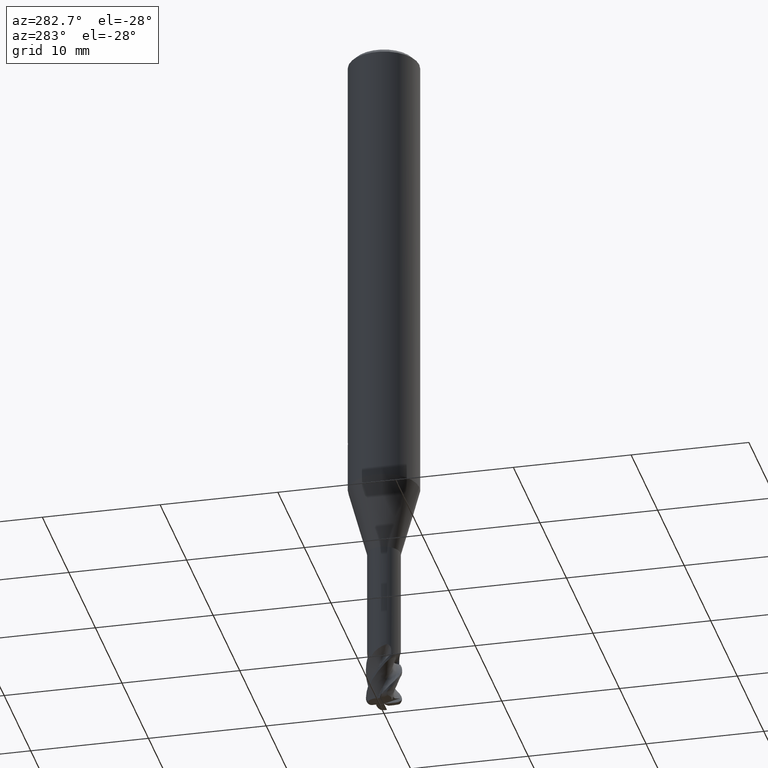
[diagram: clean part render]
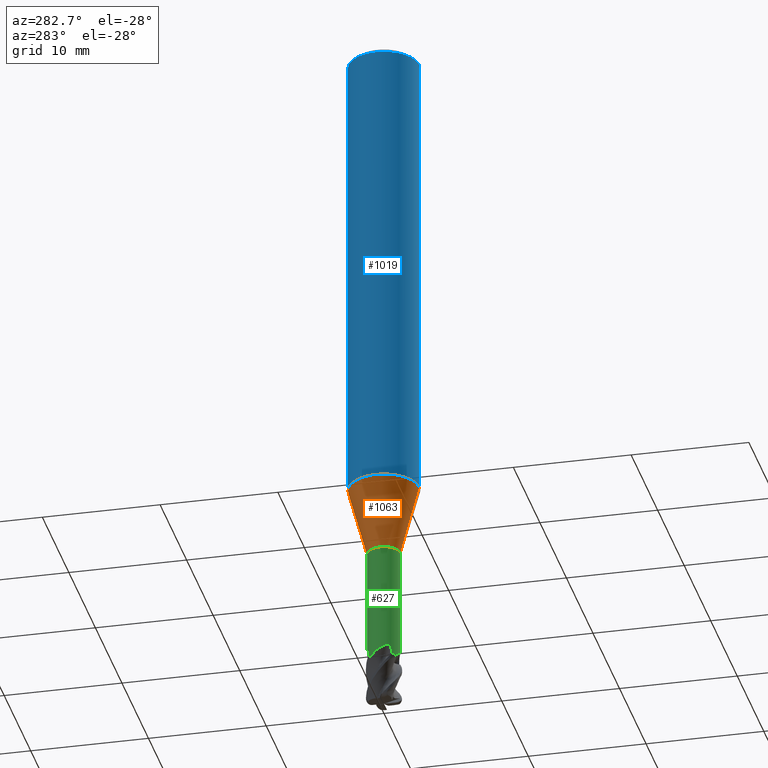
[diagram: same view with three faces highlighted in distinct colors, each labeled with its STEP entity id]
A machine part, auxiliary view with three faces highlighted in distinct colors.
Their STEP definitions:

[orange] entity #1063 — the highlighted conical surface has half-angle 15.001 deg.
#695=EDGE_CURVE('',#941,#707,#1690,.T.);
#707=VERTEX_POINT('',#1702);
#773=EDGE_CURVE('',#949,#1305,#1770,.T.);
#941=VERTEX_POINT('',#1951);
#949=VERTEX_POINT('',#1959);
#1063=ADVANCED_FACE('',(#2088),#2089,.T.);
#1263=EDGE_CURVE('',#1305,#707,#2311,.T.);
#1305=VERTEX_POINT('',#2355);
#1339=EDGE_CURVE('',#941,#949,#2394,.T.);
#1690=CIRCLE('',#3250,1.39995);
#1702=CARTESIAN_POINT('',(0.0,1.39995,-46.0));
#1770=CIRCLE('',#3572,2.99995);
#1951=CARTESIAN_POINT('',(1.71438766503364E-016,-1.39995,-46.0));
#1959=CARTESIAN_POINT('',(3.67375783114944E-016,-2.99995,-40.029));
#2088=FACE_OUTER_BOUND('',#5135,.T.);
#2089=CONICAL_SURFACE('',#5136,2.19995,0.261811165190814);
#2311=LINE('',#6642,#6643);
#2355=CARTESIAN_POINT('',(0.0,2.99995,-40.029));
#2394=LINE('',#6925,#6926);
#3250=AXIS2_PLACEMENT_3D('',#7999,#8000,#8001);
#3572=AXIS2_PLACEMENT_3D('',#8029,#8030,#8031);
#5135=EDGE_LOOP('',(#8375,#8376,#8377,#8378));
#5136=AXIS2_PLACEMENT_3D('',#8379,#8380,#8381);
#6642=CARTESIAN_POINT('',(-2.69407274809154E-016,2.19995,-43.0145));
#6643=VECTOR('',#8642,1.0);
#6925=CARTESIAN_POINT('',(2.69407274809154E-016,-2.19995,-43.0145));
#6926=VECTOR('',#8723,1.0);
#7999=CARTESIAN_POINT('',(0.0,0.0,-46.0));
#8000=DIRECTION('',(0.0,0.0,-1.0));
#8001=DIRECTION('',(0.0,1.0,0.0));
#8029=CARTESIAN_POINT('',(0.0,0.0,-40.029));
#8030=DIRECTION('',(0.0,0.0,-1.0));
#8031=DIRECTION('',(0.0,1.0,0.0));
#8375=ORIENTED_EDGE('',*,*,#1263,.T.);
#8376=ORIENTED_EDGE('',*,*,#695,.F.);
#8377=ORIENTED_EDGE('',*,*,#1339,.T.);
#8378=ORIENTED_EDGE('',*,*,#773,.T.);
#8379=CARTESIAN_POINT('',(0.0,0.0,-43.0145));
#8380=DIRECTION('',(-0.0,-0.0,1.0));
#8381=DIRECTION('',(0.0,1.0,0.0));
#8642=DIRECTION('',(3.16965378328951E-017,-0.258830421171345,-0.965922778008814));
#8723=DIRECTION('',(3.16965378328951E-017,-0.258830421171345,0.965922778008814));

[blue] entity #1019 — the highlighted cylindrical surface (edge-blend (fillet) strip) has radius 3 mm, axis along (-0, -0, 1).
#557=EDGE_CURVE('',#1205,#1451,#1544,.T.);
#643=EDGE_CURVE('',#1177,#1439,#1634,.T.);
#681=EDGE_CURVE('',#1439,#807,#1675,.T.);
#701=VERTEX_POINT('',#1696);
#723=VERTEX_POINT('',#1720);
#737=EDGE_CURVE('',#1413,#701,#1734,.T.);
#739=VERTEX_POINT('',#1736);
#807=VERTEX_POINT('',#1808);
#821=EDGE_CURVE('',#919,#723,#1822,.T.);
#919=VERTEX_POINT('',#1928);
#923=EDGE_CURVE('',#739,#701,#1932,.T.);
#963=EDGE_CURVE('',#969,#1205,#1973,.T.);
#969=VERTEX_POINT('',#1979);
#1019=ADVANCED_FACE('',(#2034,#2035,#2036),#2037,.T.);
#1051=EDGE_CURVE('',#807,#919,#2075,.T.);
#1097=EDGE_CURVE('',#723,#1177,#2125,.T.);
#1131=EDGE_CURVE('',#1269,#1413,#2163,.T.);
#1141=EDGE_CURVE('',#739,#1269,#2174,.T.);
#1177=VERTEX_POINT('',#2216);
#1205=VERTEX_POINT('',#2247);
#1261=EDGE_CURVE('',#1451,#969,#2309,.T.);
#1269=VERTEX_POINT('',#2317);
#1413=VERTEX_POINT('',#2478);
#1439=VERTEX_POINT('',#2505);
#1451=VERTEX_POINT('',#2519);
#1544=LINE('',#2639,#2640);
#1634=CIRCLE('',#2938,3.0);
#1675=B_SPLINE_CURVE_WITH_KNOTS('',3,(#3178,#3179,#3180,#3181,#3182,#3183,#3184,#3185,#3186,#3187,#3188,#3189,#3190,#3191),.UNSPECIFIED.,.F.,.F.,(4,2,2,2,2,2,4),(2.091097645352,2.38959558480883,2.68809352426566,2.9865914637225,3.28432857408576,3.58206568444903,3.88185771191667),.UNSPECIFIED.);
#1696=CARTESIAN_POINT('',(-3.67381906146713E-016,3.0,-40.029));
#1720=CARTESIAN_POINT('',(-0.324247225918625,2.98242581407888,-34.457948685318));
#1734=LINE('',#3491,#3492);
#1736=CARTESIAN_POINT('',(0.0,-3.0,-40.029));
#1808=CARTESIAN_POINT('',(-0.0173204359069893,2.99995,-35.0267581803455));
#1822=B_SPLINE_CURVE_WITH_KNOTS('',3,(#3710,#3711,#3712,#3713,#3714,#3715,#3716,#3717,#3718,#3719,#3720,#3721,#3722,#3723,#3724,#3725,#3726,#3727,#3728,#3729,#3730,#3731,#3732,#3733,#3734,#3735,#3736),.UNSPECIFIED.,.F.,.F.,(4,2,3,2,2,2,2,2,2,2,2,2,4),(-0.361797878080097,-0.180898939040048,0.0,0.180898939040045,0.36179787808009,0.54316499674529,0.724532115410489,0.905110773244761,1.08568943107903,1.26650066090355,1.44731189072806,1.62812312055258,1.80893435037709),.UNSPECIFIED.);
#1928=CARTESIAN_POINT('',(-0.017320435906965,2.99995,-34.707064236895));
#1932=CIRCLE('',#4082,3.0);
#1973=B_SPLINE_CURVE_WITH_KNOTS('',3,(#4218,#4219,#4220,#4221,#4222,#4223,#4224,#4225,#4226,#4227),.UNSPECIFIED.,.F.,.F.,(4,2,2,2,4),(3.71798730591323,4.13127027719931,4.54460961578536,4.9579489543714,5.37052319276389),.UNSPECIFIED.);
#1979=CARTESIAN_POINT('',(-0.891353646972585,2.86452241674396,-35.6104605734398));
#2034=FACE_OUTER_BOUND('',#4565,.T.);
#2035=FACE_BOUND('',#4566,.T.);
#2036=FACE_BOUND('',#4567,.T.);
#2037=CYLINDRICAL_SURFACE('',#4568,3.0);
#2075=LINE('',#5084,#5085);
#2125=B_SPLINE_CURVE_WITH_KNOTS('',3,(#5275,#5276,#5277,#5278,#5279,#5280,#5281,#5282,#5283,#5284,#5285,#5286,#5287,#5288,#5289,#5290,#5291,#5292,#5293,#5294,#5295,#5296,#5297,#5298,#5299,#5300,#5301),.UNSPECIFIED.,.F.,.F.,(4,2,3,2,2,2,2,2,2,2,2,2,4),(-0.361797878080097,-0.180898939040048,0.0,0.180898939040045,0.36179787808009,0.54316499674529,0.724532115410489,0.905110773244761,1.08568943107903,1.26650066090355,1.44731189072806,1.62812312055258,1.80893435037709),.UNSPECIFIED.);
#2163=CIRCLE('',#5562,3.0);
#2174=LINE('',#5688,#5689);
#2216=CARTESIAN_POINT('',(-0.374883079288044,2.9764849532399,-34.2405112759037));
#2247=CARTESIAN_POINT('',(-0.0173204359069978,2.99995,-36.0499133845535));
#2309=ELLIPSE('',#6639,3.34478529612858,3.0);
#2317=CARTESIAN_POINT('',(3.67381906146713E-016,-3.0,-0.399999999999999));
#2478=CARTESIAN_POINT('',(0.0,3.0,-0.399999999999999));
#2505=CARTESIAN_POINT('',(-0.690037436273679,2.9195630386311,-34.2405112759037));
#2519=CARTESIAN_POINT('',(-0.017320435906985,2.99995,-35.1795476553544));
#2639=CARTESIAN_POINT('',(-0.017320435906985,2.99995,-35.0395073647412));
#2640=VECTOR('',#7884,1.0);
#2938=AXIS2_PLACEMENT_3D('',#7951,#7952,#7953);
#3178=CARTESIAN_POINT('',(-0.629727328037683,2.93316271153213,-33.9440913557644));
#3179=CARTESIAN_POINT('',(-0.670089755997728,2.92449721450026,-34.0412639601135));
#3180=CARTESIAN_POINT('',(-0.690061178540054,2.91955742705498,-34.1471316354559));
#3181=CARTESIAN_POINT('',(-0.690061178540054,2.91955742705498,-34.3461302617605));
#3182=CARTESIAN_POINT('',(-0.670089755997728,2.92449721450026,-34.4519979371029));
#3183=CARTESIAN_POINT('',(-0.589364900077664,2.94182820856402,-34.6463431458012));
#3184=CARTESIAN_POINT('',(-0.528629969212499,2.95390696563364,-34.7348560999866));
#3185=CARTESIAN_POINT('',(-0.388825924618277,2.97553438372319,-34.8744507471901));
#3186=CARTESIAN_POINT('',(-0.300374998568301,2.98650953771095,-34.9350152917628));
#3187=CARTESIAN_POINT('',(-0.106252469502454,2.99969577970094,-35.0154637231012));
#3188=CARTESIAN_POINT('',(-0.000555188223129111,3.0016411180253,-35.0353289843056));
#3189=CARTESIAN_POINT('',(0.198513504569518,2.99509240733468,-35.0353289843056));
#3190=CARTESIAN_POINT('',(0.304528894401634,2.98611319488251,-35.015217470731));
#3191=CARTESIAN_POINT('',(0.401676121348868,2.97298777218106,-34.9747873850085));
#3491=CARTESIAN_POINT('',(-3.67381906146713E-016,3.0,-18.2));
#3492=VECTOR('',#8023,1.0);
#3710=CARTESIAN_POINT('',(0.443451175650265,2.96704416125113,-33.9048764058061));
#3711=CARTESIAN_POINT('',(0.485825230520439,2.96071098134951,-33.9473072631593));
#3712=CARTESIAN_POINT('',(0.522628634598443,2.95423041401875,-34.0010565977036));
#3713=CARTESIAN_POINT('',(0.57151547907337,2.94516350896329,-34.1190093998545));
#3714=CARTESIAN_POINT('',(0.58359092842081,2.94268952291351,-34.1832247886017));
#3715=CARTESIAN_POINT('',(0.58359092842081,2.94268952291351,-34.2435244349484));
#3716=CARTESIAN_POINT('',(0.58359092842081,2.94268952291351,-34.3038240812951));
#3717=CARTESIAN_POINT('',(0.571515479073374,2.94516350896329,-34.3680394700423));
#3718=CARTESIAN_POINT('',(0.522628634598449,2.95423041401874,-34.4859922721932));
#3719=CARTESIAN_POINT('',(0.485825230520438,2.96071098134951,-34.5397416067375));
#3720=CARTESIAN_POINT('',(0.400967453640912,2.97339373188344,-34.6247131355921));
#3721=CARTESIAN_POINT('',(0.347160591378603,2.98043595390805,-34.6616186343397));
#3722=CARTESIAN_POINT('',(0.229067490754345,2.99183004798448,-34.7106491335629));
#3723=CARTESIAN_POINT('',(0.164768311964613,2.99608182394725,-34.7227661750437));
#3724=CARTESIAN_POINT('',(0.0441927259273236,3.00027835150232,-34.7227661750437));
#3725=CARTESIAN_POINT('',(-0.019984914707439,3.00051422459916,-34.7107432311485));
#3726=CARTESIAN_POINT('',(-0.138011899975601,2.99740516520178,-34.6618705536194));
#3727=CARTESIAN_POINT('',(-0.191865153226538,2.99416206152009,-34.6250238345305));
#3728=CARTESIAN_POINT('',(-0.276951356845972,2.9874941541864,-34.5400104084073));
#3729=CARTESIAN_POINT('',(-0.31385751762486,2.98363884435361,-34.4861404765947));
#3730=CARTESIAN_POINT('',(-0.362829872721118,2.97808021777493,-34.36803592618));
#3731=CARTESIAN_POINT('',(-0.374892551769671,2.97648376018208,-34.3037948448899));
#3732=CARTESIAN_POINT('',(-0.374892551769671,2.97648376018208,-34.1832540250069));
#3733=CARTESIAN_POINT('',(-0.362829872721118,2.97808021777493,-34.1190129437168));
#3734=CARTESIAN_POINT('',(-0.31385751762486,2.98363884435361,-34.0009083933022));
#3735=CARTESIAN_POINT('',(-0.276951356845972,2.9874941541864,-33.9470384614896));
#3736=CARTESIAN_POINT('',(-0.234380876478644,2.99083025341478,-33.9045043932883));
#4082=AXIS2_PLACEMENT_3D('',#8186,#8187,#8188);
#4218=CARTESIAN_POINT('',(-1.02131077257619,2.8208020678204,-35.3813603909889));
#4219=CARTESIAN_POINT('',(-0.965748326062893,2.84091920915678,-35.5148586563829));
#4220=CARTESIAN_POINT('',(-0.882474008253194,2.86898278727422,-35.6360393018291));
#4221=CARTESIAN_POINT('',(-0.691181971660376,2.92097462682348,-35.8274209134462));
#4222=CARTESIAN_POINT('',(-0.569939118101215,2.94845792845378,-35.9108242986056));
#4223=CARTESIAN_POINT('',(-0.302738780934602,2.98773894197887,-36.0221051738375));
#4224=CARTESIAN_POINT('',(-0.156684840798735,2.99907204453492,-36.0499145449035));
#4225=CARTESIAN_POINT('',(0.118614216879022,3.00080717863586,-36.0499145449035));
#4226=CARTESIAN_POINT('',(0.264548965222023,2.99134988491468,-36.0221974310104));
#4227=CARTESIAN_POINT('',(0.398117192990064,2.97346644518577,-35.9666337934181));
#4565=EDGE_LOOP('',(#8292,#8293,#8294,#8295));
#4566=EDGE_LOOP('',(#8296,#8297,#8298));
#4567=EDGE_LOOP('',(#8299,#8300,#8301,#8302,#8303));
#4568=AXIS2_PLACEMENT_3D('',#8304,#8305,#8306);
#5084=CARTESIAN_POINT('',(-0.017320435906985,2.99995,-35.0395073647412));
#5085=VECTOR('',#8363,1.0);
#5275=CARTESIAN_POINT('',(0.443451175650265,2.96704416125113,-33.9048764058061));
#5276=CARTESIAN_POINT('',(0.485825230520439,2.96071098134951,-33.9473072631593));
#5277=CARTESIAN_POINT('',(0.522628634598443,2.95423041401875,-34.0010565977036));
#5278=CARTESIAN_POINT('',(0.57151547907337,2.94516350896329,-34.1190093998545));
#5279=CARTESIAN_POINT('',(0.58359092842081,2.94268952291351,-34.1832247886017));
#5280=CARTESIAN_POINT('',(0.58359092842081,2.94268952291351,-34.2435244349484));
#5281=CARTESIAN_POINT('',(0.58359092842081,2.94268952291351,-34.3038240812951));
#5282=CARTESIAN_POINT('',(0.571515479073374,2.94516350896329,-34.3680394700423));
#5283=CARTESIAN_POINT('',(0.522628634598449,2.95423041401874,-34.4859922721932));
#5284=CARTESIAN_POINT('',(0.485825230520438,2.96071098134951,-34.5397416067375));
#5285=CARTESIAN_POINT('',(0.400967453640912,2.97339373188344,-34.6247131355921));
#5286=CARTESIAN_POINT('',(0.347160591378603,2.98043595390805,-34.6616186343397));
#5287=CARTESIAN_POINT('',(0.229067490754345,2.99183004798448,-34.7106491335629));
#5288=CARTESIAN_POINT('',(0.164768311964613,2.99608182394725,-34.7227661750437));
#5289=CARTESIAN_POINT('',(0.0441927259273236,3.00027835150232,-34.7227661750437));
#5290=CARTESIAN_POINT('',(-0.019984914707439,3.00051422459916,-34.7107432311485));
#5291=CARTESIAN_POINT('',(-0.138011899975601,2.99740516520178,-34.6618705536194));
#5292=CARTESIAN_POINT('',(-0.191865153226538,2.99416206152009,-34.6250238345305));
#5293=CARTESIAN_POINT('',(-0.276951356845972,2.9874941541864,-34.5400104084073));
#5294=CARTESIAN_POINT('',(-0.31385751762486,2.98363884435361,-34.4861404765947));
#5295=CARTESIAN_POINT('',(-0.362829872721118,2.97808021777493,-34.36803592618));
#5296=CARTESIAN_POINT('',(-0.374892551769671,2.97648376018208,-34.3037948448899));
#5297=CARTESIAN_POINT('',(-0.374892551769671,2.97648376018208,-34.1832540250069));
#5298=CARTESIAN_POINT('',(-0.362829872721118,2.97808021777493,-34.1190129437168));
#5299=CARTESIAN_POINT('',(-0.31385751762486,2.98363884435361,-34.0009083933022));
#5300=CARTESIAN_POINT('',(-0.276951356845972,2.9874941541864,-33.9470384614896));
#5301=CARTESIAN_POINT('',(-0.234380876478644,2.99083025341478,-33.9045043932883));
#5562=AXIS2_PLACEMENT_3D('',#8465,#8466,#8467);
#5688=CARTESIAN_POINT('',(3.67381906146713E-016,-3.0,-18.2));
#5689=VECTOR('',#8476,1.0);
#6639=AXIS2_PLACEMENT_3D('',#8639,#8640,#8641);
#7884=DIRECTION('',(-0.0,-0.0,1.0));
#7951=CARTESIAN_POINT('',(0.0,0.0,-34.2405112759037));
#7952=DIRECTION('',(0.0,-0.0,1.0));
#7953=DIRECTION('',(0.0,1.0,0.0));
#8023=DIRECTION('',(0.0,0.0,-1.0));
#8186=CARTESIAN_POINT('',(0.0,0.0,-40.029));
#8187=DIRECTION('',(0.0,0.0,-1.0));
#8188=DIRECTION('',(0.0,-1.0,0.0));
#8292=ORIENTED_EDGE('',*,*,#737,.T.);
#8293=ORIENTED_EDGE('',*,*,#923,.F.);
#8294=ORIENTED_EDGE('',*,*,#1141,.T.);
#8295=ORIENTED_EDGE('',*,*,#1131,.T.);
#8296=ORIENTED_EDGE('',*,*,#963,.T.);
#8297=ORIENTED_EDGE('',*,*,#557,.T.);
#8298=ORIENTED_EDGE('',*,*,#1261,.T.);
#8299=ORIENTED_EDGE('',*,*,#821,.T.);
#8300=ORIENTED_EDGE('',*,*,#1097,.T.);
#8301=ORIENTED_EDGE('',*,*,#643,.T.);
#8302=ORIENTED_EDGE('',*,*,#681,.T.);
#8303=ORIENTED_EDGE('',*,*,#1051,.T.);
#8304=CARTESIAN_POINT('',(0.0,0.0,-18.2));
#8305=DIRECTION('',(-0.0,-0.0,1.0));
#8306=DIRECTION('',(0.0,1.0,0.0));
#8363=DIRECTION('',(-0.0,-0.0,1.0));
#8465=CARTESIAN_POINT('',(0.0,0.0,-0.399999999999999));
#8466=DIRECTION('',(0.0,0.0,-1.0));
#8467=DIRECTION('',(0.0,1.0,0.0));
#8476=DIRECTION('',(-0.0,-0.0,1.0));
#8639=CARTESIAN_POINT('',(0.0,0.0,-35.1710083922181));
#8640=DIRECTION('',(-0.442195774284071,0.0,0.896918556617774));
#8641=DIRECTION('',(0.896918556617774,-0.0,0.442195774284071));

[green] entity #627 — the highlighted cylindrical surface (edge-blend (fillet) strip) has radius 1.4 mm, axis along (-0, -0, 1).
#539=EDGE_CURVE('',#561,#1123,#1523,.T.);
#561=VERTEX_POINT('',#1549);
#627=ADVANCED_FACE('',(#1617),#1618,.T.);
#639=EDGE_CURVE('',#707,#753,#1630,.T.);
#647=EDGE_CURVE('',#1315,#1123,#1639,.T.);
#651=EDGE_CURVE('',#561,#1361,#1643,.T.);
#673=VERTEX_POINT('',#1667);
#695=EDGE_CURVE('',#941,#707,#1690,.T.);
#707=VERTEX_POINT('',#1702);
#753=VERTEX_POINT('',#1750);
#941=VERTEX_POINT('',#1951);
#959=EDGE_CURVE('',#1297,#1047,#1969,.T.);
#1047=VERTEX_POINT('',#2070);
#1081=EDGE_CURVE('',#1361,#1433,#2107,.T.);
#1123=VERTEX_POINT('',#2153);
#1185=EDGE_CURVE('',#753,#1417,#2225,.T.);
#1297=VERTEX_POINT('',#2347);
#1303=EDGE_CURVE('',#1417,#1315,#2353,.T.);
#1315=VERTEX_POINT('',#2370);
#1361=VERTEX_POINT('',#2418);
#1383=EDGE_CURVE('',#1297,#673,#2442,.T.);
#1409=EDGE_CURVE('',#1433,#1047,#2473,.T.);
#1417=VERTEX_POINT('',#2482);
#1433=VERTEX_POINT('',#2499);
#1467=EDGE_CURVE('',#673,#941,#2536,.T.);
#1523=CIRCLE('',#2602,1.39995);
#1549=CARTESIAN_POINT('',(-1.13891935984094,0.814077818319292,-56.0));
#1617=FACE_OUTER_BOUND('',#2897,.T.);
#1618=CYLINDRICAL_SURFACE('',#2898,1.39995);
#1630=LINE('',#2930,#2931);
#1639=B_SPLINE_CURVE_WITH_KNOTS('',3,(#2944,#2945,#2946,#2947),.UNSPECIFIED.,.F.,.F.,(4,4),(0.0,0.362922418477645),.UNSPECIFIED.);
#1643=B_SPLINE_CURVE_WITH_KNOTS('',3,(#2962,#2963,#2964,#2965,#2966,#2967,#2968,#2969),.UNSPECIFIED.,.F.,.F.,(4,2,2,4),(0.0,0.504052091266525,1.06746753627352,1.61827094526331),.UNSPECIFIED.);
#1667=CARTESIAN_POINT('',(5.57564168717373E-016,-1.39995,-55.4057922484314));
#1690=CIRCLE('',#3250,1.39995);
#1702=CARTESIAN_POINT('',(0.0,1.39995,-46.0));
#1750=CARTESIAN_POINT('',(-4.05476669628662E-015,1.39995,-55.4057922484315));
#1951=CARTESIAN_POINT('',(1.71438766503364E-016,-1.39995,-46.0));
#1969=CIRCLE('',#4213,1.39995);
#2070=CARTESIAN_POINT('',(-1.10008510722088,-0.865836450705801,-56.0));
#2107=B_SPLINE_CURVE_WITH_KNOTS('',3,(#5195,#5196,#5197,#5198,#5199,#5200,#5201,#5202,#5203,#5204,#5205,#5206,#5207,#5208),.UNSPECIFIED.,.F.,.F.,(4,2,2,2,2,2,4),(0.0,0.109753618280985,0.204136593542329,0.305155314648042,0.443518922235424,0.603918761724563,0.772818256165574),.UNSPECIFIED.);
#2153=CARTESIAN_POINT('',(-0.865836450705801,1.10008510722088,-56.0));
#2225=B_SPLINE_CURVE_WITH_KNOTS('',3,(#5930,#5931,#5932,#5933,#5934,#5935,#5936,#5937),.UNSPECIFIED.,.F.,.F.,(4,2,2,4),(0.0,0.50405209126627,1.0674675362729,1.61827094526245),.UNSPECIFIED.);
#2347=CARTESIAN_POINT('',(-0.814077818319292,-1.13891935984094,-56.0));
#2353=B_SPLINE_CURVE_WITH_KNOTS('',3,(#6748,#6749,#6750,#6751,#6752,#6753,#6754,#6755,#6756,#6757,#6758,#6759,#6760,#6761),.UNSPECIFIED.,.F.,.F.,(4,2,2,2,2,2,4),(0.0,0.109753618281209,0.204136593542762,0.305155314648615,0.443518922236342,0.603918761725875,0.772818256167303),.UNSPECIFIED.);
#2370=CARTESIAN_POINT('',(-0.860321262158521,1.10440360755385,-55.6371360861154));
#2418=CARTESIAN_POINT('',(-1.31942104965548,-0.467961639694992,-55.1615530628469));
#2442=B_SPLINE_CURVE_WITH_KNOTS('',3,(#7304,#7305,#7306,#7307,#7308,#7309,#7310,#7311),.UNSPECIFIED.,.F.,.F.,(4,2,2,4),(0.0,0.504052091266529,1.06746753627353,1.61827094526333),.UNSPECIFIED.);
#2473=B_SPLINE_CURVE_WITH_KNOTS('',3,(#7545,#7546,#7547,#7548),.UNSPECIFIED.,.F.,.F.,(4,4),(0.0,0.362922418477601),.UNSPECIFIED.);
#2482=CARTESIAN_POINT('',(-0.467961639694993,1.31942104965548,-55.1615530628469));
#2499=CARTESIAN_POINT('',(-1.10440360755386,-0.860321262158521,-55.6371360861154));
#2536=LINE('',#7779,#7780);
#2602=AXIS2_PLACEMENT_3D('',#7854,#7855,#7856);
#2897=EDGE_LOOP('',(#7931,#7932,#7933,#7934,#7935,#7936,#7937,#7938,#7939,#7940,#7941,#7942));
#2898=AXIS2_PLACEMENT_3D('',#7943,#7944,#7945);
#2930=CARTESIAN_POINT('',(-1.71438766503364E-016,1.39995,-51.0));
#2931=VECTOR('',#7949,1.0);
#2944=CARTESIAN_POINT('',(-0.860321262158519,1.10440360755385,-55.6371360861154));
#2945=CARTESIAN_POINT('',(-0.862300730676255,1.1028616179751,-55.7580842006046));
#2946=CARTESIAN_POINT('',(-0.864140347817941,1.10142004730399,-55.879044904701));
#2947=CARTESIAN_POINT('',(-0.865836450705804,1.10008510722088,-56.0000000000001));
#2962=CARTESIAN_POINT('',(-1.13891935984085,0.814077818319418,-56.0000000000001));
#2963=CARTESIAN_POINT('',(-1.20854518737965,0.716669190858501,-55.8821287229261));
#2964=CARTESIAN_POINT('',(-1.27018373920046,0.604628042793646,-55.7805471273364));
#2965=CARTESIAN_POINT('',(-1.36937463500982,0.329414926825013,-55.5827110528763));
#2966=CARTESIAN_POINT('',(-1.39928869611798,0.170822078999659,-55.4946211279033));
#2967=CARTESIAN_POINT('',(-1.40057506914444,-0.156104735908327,-55.3246125423888));
#2968=CARTESIAN_POINT('',(-1.37320890596757,-0.316306410261519,-55.2466534803271));
#2969=CARTESIAN_POINT('',(-1.31942104965548,-0.467961639694998,-55.1615530628468));
#3250=AXIS2_PLACEMENT_3D('',#7999,#8000,#8001);
#4213=AXIS2_PLACEMENT_3D('',#8225,#8226,#8227);
#5195=CARTESIAN_POINT('',(-1.31942104965332,-0.467961639701091,-55.1615530631076));
#5196=CARTESIAN_POINT('',(-1.30811376901254,-0.4998425949463,-55.1476182641406));
#5197=CARTESIAN_POINT('',(-1.29505732852792,-0.532936461641734,-55.1393262149496));
#5198=CARTESIAN_POINT('',(-1.26756742317932,-0.595079748106093,-55.1389568257626));
#5199=CARTESIAN_POINT('',(-1.2542537679079,-0.622542676536849,-55.1447936117395));
#5200=CARTESIAN_POINT('',(-1.22626618146238,-0.676096997010226,-55.1688305154038));
#5201=CARTESIAN_POINT('',(-1.21226294604536,-0.700649944438405,-55.1872752112926));
#5202=CARTESIAN_POINT('',(-1.18153651922529,-0.751675939869258,-55.2402971311851));
#5203=CARTESIAN_POINT('',(-1.16584446658699,-0.775360609965587,-55.2781062811597));
#5204=CARTESIAN_POINT('',(-1.1379848519949,-0.815809903944171,-55.3650412268161));
#5205=CARTESIAN_POINT('',(-1.12631721483434,-0.831533778409912,-55.4163569599827));
#5206=CARTESIAN_POINT('',(-1.1097978831189,-0.853467640271437,-55.5233564555825));
#5207=CARTESIAN_POINT('',(-1.10512742491951,-0.85939209006303,-55.5803624615354));
#5208=CARTESIAN_POINT('',(-1.10440360761531,-0.86032126207964,-55.6371360861161));
#5930=CARTESIAN_POINT('',(0.814077818319396,1.13891935984087,-56.0000000000001));
#5931=CARTESIAN_POINT('',(0.716669190858525,1.20854518737963,-55.8821287229262));
#5932=CARTESIAN_POINT('',(0.604628042793647,1.27018373920047,-55.7805471273364));
#5933=CARTESIAN_POINT('',(0.329414926824956,1.36937463500984,-55.5827110528763));
#5934=CARTESIAN_POINT('',(0.170822078999583,1.39928869611798,-55.4946211279033));
#5935=CARTESIAN_POINT('',(-0.15610473590838,1.40057506914443,-55.3246125423888));
#5936=CARTESIAN_POINT('',(-0.316306410261545,1.37320890596755,-55.2466534803271));
#5937=CARTESIAN_POINT('',(-0.467961639694998,1.31942104965548,-55.1615530628468));
#6748=CARTESIAN_POINT('',(-0.467961639701097,1.31942104965333,-55.1615530631076));
#6749=CARTESIAN_POINT('',(-0.49984259494637,1.30811376901252,-55.1476182641406));
#6750=CARTESIAN_POINT('',(-0.532936461641763,1.29505732852791,-55.1393262149497));
#6751=CARTESIAN_POINT('',(-0.595079748106076,1.26756742317932,-55.1389568257627));
#6752=CARTESIAN_POINT('',(-0.62254267653682,1.25425376790792,-55.1447936117395));
#6753=CARTESIAN_POINT('',(-0.676096997010242,1.22626618146237,-55.1688305154038));
#6754=CARTESIAN_POINT('',(-0.700649944438431,1.21226294604534,-55.1872752112926));
#6755=CARTESIAN_POINT('',(-0.751675939869259,1.18153651922529,-55.2402971311851));
#6756=CARTESIAN_POINT('',(-0.775360609965587,1.16584446658699,-55.2781062811598));
#6757=CARTESIAN_POINT('',(-0.815809903944173,1.1379848519949,-55.3650412268161));
#6758=CARTESIAN_POINT('',(-0.831533778409913,1.12631721483434,-55.4163569599827));
#6759=CARTESIAN_POINT('',(-0.853467640271438,1.1097978831189,-55.5233564555825));
#6760=CARTESIAN_POINT('',(-0.859392090063031,1.10512742491951,-55.5803624615354));
#6761=CARTESIAN_POINT('',(-0.86032126207964,1.10440360761531,-55.6371360861161));
#7304=CARTESIAN_POINT('',(-0.814077818319419,-1.13891935984085,-56.0000000000001));
#7305=CARTESIAN_POINT('',(-0.7166691908585,-1.20854518737965,-55.8821287229261));
#7306=CARTESIAN_POINT('',(-0.604628042793646,-1.27018373920046,-55.7805471273364));
#7307=CARTESIAN_POINT('',(-0.329414926825012,-1.36937463500982,-55.5827110528763));
#7308=CARTESIAN_POINT('',(-0.170822078999658,-1.39928869611798,-55.4946211279033));
#7309=CARTESIAN_POINT('',(0.156104735908329,-1.40057506914444,-55.3246125423888));
#7310=CARTESIAN_POINT('',(0.31630641026152,-1.37320890596757,-55.2466534803271));
#7311=CARTESIAN_POINT('',(0.467961639694998,-1.31942104965548,-55.1615530628468));
#7545=CARTESIAN_POINT('',(-1.10440360755386,-0.86032126215852,-55.6371360861154));
#7546=CARTESIAN_POINT('',(-1.10286161797511,-0.862300730676255,-55.7580842006045));
#7547=CARTESIAN_POINT('',(-1.10142004730399,-0.86414034781794,-55.879044904701));
#7548=CARTESIAN_POINT('',(-1.10008510722088,-0.865836450705803,-56.0000000000001));
#7779=CARTESIAN_POINT('',(1.71438766503364E-016,-1.39995,-51.0));
#7780=VECTOR('',#8884,1.0);
#7854=CARTESIAN_POINT('',(0.0,0.0,-56.0));
#7855=DIRECTION('',(0.0,0.0,-1.0));
#7856=DIRECTION('',(0.0,1.0,0.0));
#7931=ORIENTED_EDGE('',*,*,#639,.T.);
#7932=ORIENTED_EDGE('',*,*,#1185,.T.);
#7933=ORIENTED_EDGE('',*,*,#1303,.T.);
#7934=ORIENTED_EDGE('',*,*,#647,.T.);
#7935=ORIENTED_EDGE('',*,*,#539,.F.);
#7936=ORIENTED_EDGE('',*,*,#651,.T.);
#7937=ORIENTED_EDGE('',*,*,#1081,.T.);
#7938=ORIENTED_EDGE('',*,*,#1409,.T.);
#7939=ORIENTED_EDGE('',*,*,#959,.F.);
#7940=ORIENTED_EDGE('',*,*,#1383,.T.);
#7941=ORIENTED_EDGE('',*,*,#1467,.T.);
#7942=ORIENTED_EDGE('',*,*,#695,.T.);
#7943=CARTESIAN_POINT('',(0.0,0.0,-51.0));
#7944=DIRECTION('',(-0.0,-0.0,1.0));
#7945=DIRECTION('',(0.0,1.0,0.0));
#7949=DIRECTION('',(0.0,0.0,-1.0));
#7999=CARTESIAN_POINT('',(0.0,0.0,-46.0));
#8000=DIRECTION('',(0.0,0.0,-1.0));
#8001=DIRECTION('',(0.0,1.0,0.0));
#8225=CARTESIAN_POINT('',(0.0,0.0,-56.0));
#8226=DIRECTION('',(0.0,0.0,-1.0));
#8227=DIRECTION('',(0.0,1.0,0.0));
#8884=DIRECTION('',(-0.0,-0.0,1.0));